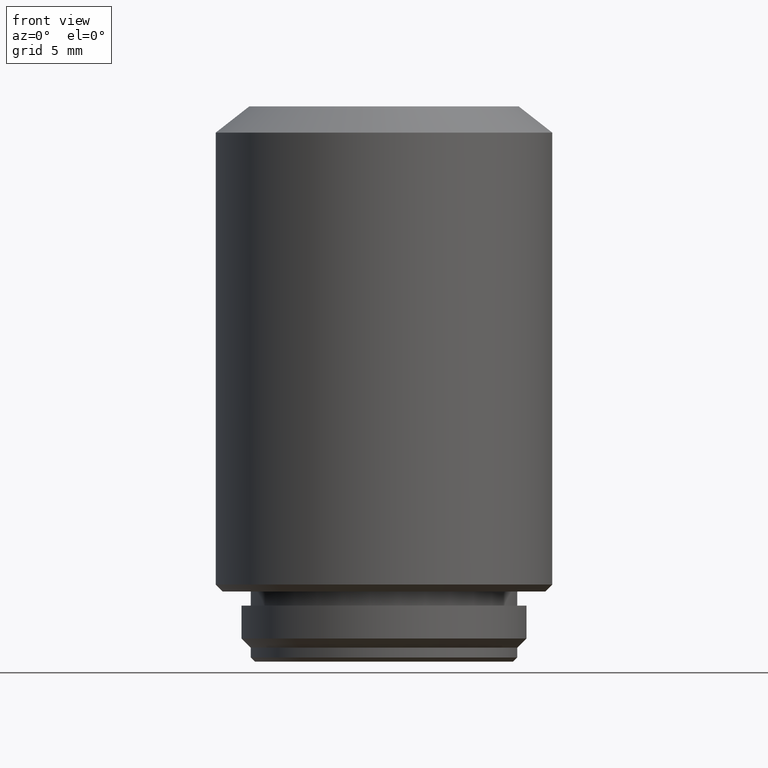
[diagram: clean part render]
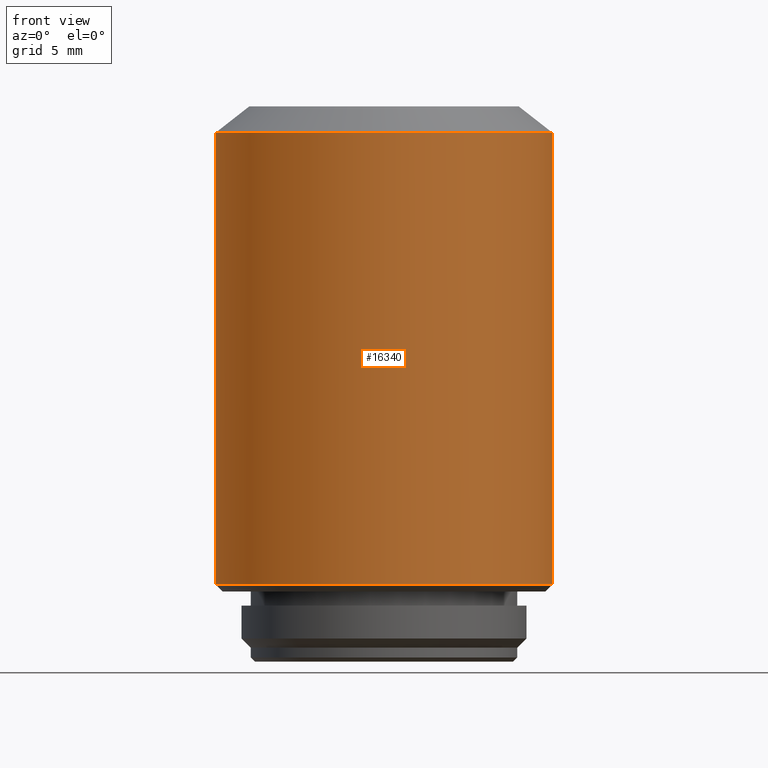
[diagram: same view with one face highlighted and labeled with its STEP entity id]
A machine part, front view. The second image highlights one B-rep face of the part: STEP entity #16340.
In plain terms, the highlighted cylindrical surface (partial cylindrical patch) has radius 12 mm, axis along (0, 0, -1).
Its self-contained STEP definition (entity closure, byte-faithful):
#250 = CIRCLE ( 'NONE', #9753, 12.00000000000000000 ) ;
#618 = CIRCLE ( 'NONE', #6925, 12.00000000000000000 ) ;
#1232 = LINE ( 'NONE', #6802, #15419 ) ;
#1935 = ORIENTED_EDGE ( 'NONE', *, *, #15501, .T. ) ;
#1974 = CYLINDRICAL_SURFACE ( 'NONE', #22478, 12.00000000000000000 ) ;
#2550 = DIRECTION ( 'NONE',  ( 0.000000000000000000, 0.000000000000000000, 1.000000000000000000 ) ) ;
#3947 = DIRECTION ( 'NONE',  ( 0.000000000000000000, 0.000000000000000000, -1.000000000000000000 ) ) ;
#4305 = CARTESIAN_POINT ( 'NONE',  ( 12.00000000000000000, 1.469576158976823947E-15, 39.60000000000000142 ) ) ;
#4701 = VERTEX_POINT ( 'NONE', #16672 ) ;
#5017 = EDGE_CURVE ( 'NONE', #13530, #21322, #250, .T. ) ;
#6802 = CARTESIAN_POINT ( 'NONE',  ( -12.00000000000000000, 0.000000000000000000, 39.60000000000000142 ) ) ;
#6925 = AXIS2_PLACEMENT_3D ( 'NONE', #21431, #12234, #23674 ) ;
#7464 = CARTESIAN_POINT ( 'NONE',  ( 12.00000000000000178, 0.000000000000000000, 5.500000000000000000 ) ) ;
#9030 = EDGE_CURVE ( 'NONE', #4701, #22550, #618, .T. ) ;
#9347 = EDGE_CURVE ( 'NONE', #4701, #21322, #13743, .T. ) ;
#9753 = AXIS2_PLACEMENT_3D ( 'NONE', #13716, #2550, #17798 ) ;
#9899 = DIRECTION ( 'NONE',  ( -1.000000000000000000, 0.000000000000000000, 0.000000000000000000 ) ) ;
#11518 = DIRECTION ( 'NONE',  ( 0.000000000000000000, 0.000000000000000000, -1.000000000000000000 ) ) ;
#12234 = DIRECTION ( 'NONE',  ( 0.000000000000000000, 0.000000000000000000, -1.000000000000000000 ) ) ;
#12411 = CARTESIAN_POINT ( 'NONE',  ( -12.00000000000000178, 1.469576158976824144E-15, 5.500000000000000000 ) ) ;
#12655 = CARTESIAN_POINT ( 'NONE',  ( -12.00000000000000355, 0.000000000000000000, 37.72500000000000142 ) ) ;
#13530 = VERTEX_POINT ( 'NONE', #12411 ) ;
#13716 = CARTESIAN_POINT ( 'NONE',  ( 0.000000000000000000, 0.000000000000000000, 5.500000000000000000 ) ) ;
#13743 = LINE ( 'NONE', #4305, #16444 ) ;
#13849 = EDGE_LOOP ( 'NONE', ( #19047, #15070, #1935, #20195 ) ) ;
#15070 = ORIENTED_EDGE ( 'NONE', *, *, #9030, .T. ) ;
#15419 = VECTOR ( 'NONE', #18470, 1000.000000000000000 ) ;
#15501 = EDGE_CURVE ( 'NONE', #22550, #13530, #1232, .T. ) ;
#16340 = ADVANCED_FACE ( 'NONE', ( #21313 ), #1974, .T. ) ;
#16444 = VECTOR ( 'NONE', #3947, 1000.000000000000000 ) ;
#16672 = CARTESIAN_POINT ( 'NONE',  ( 12.00000000000000355, 1.469576158976824342E-15, 37.72500000000000142 ) ) ;
#17798 = DIRECTION ( 'NONE',  ( -1.000000000000000000, 0.000000000000000000, 0.000000000000000000 ) ) ;
#18470 = DIRECTION ( 'NONE',  ( 0.000000000000000000, 0.000000000000000000, -1.000000000000000000 ) ) ;
#19047 = ORIENTED_EDGE ( 'NONE', *, *, #9347, .F. ) ;
#20195 = ORIENTED_EDGE ( 'NONE', *, *, #5017, .T. ) ;
#20826 = CARTESIAN_POINT ( 'NONE',  ( 0.000000000000000000, 0.000000000000000000, 39.60000000000000142 ) ) ;
#21313 = FACE_OUTER_BOUND ( 'NONE', #13849, .T. ) ;
#21322 = VERTEX_POINT ( 'NONE', #7464 ) ;
#21431 = CARTESIAN_POINT ( 'NONE',  ( 0.000000000000000000, 0.000000000000000000, 37.72500000000000142 ) ) ;
#22478 = AXIS2_PLACEMENT_3D ( 'NONE', #20826, #11518, #9899 ) ;
#22550 = VERTEX_POINT ( 'NONE', #12655 ) ;
#23674 = DIRECTION ( 'NONE',  ( 1.000000000000000000, 0.000000000000000000, 0.000000000000000000 ) ) ;